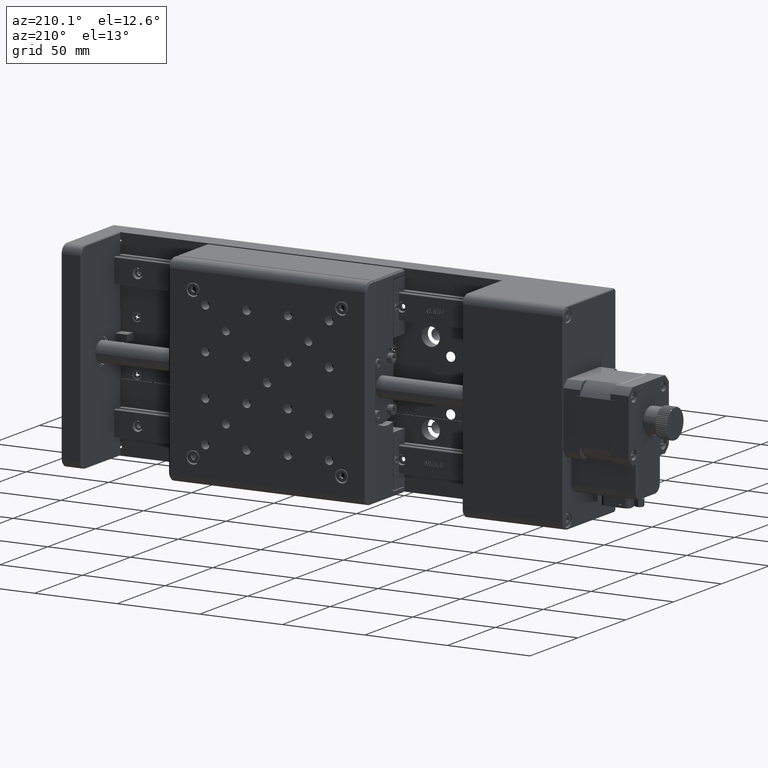
[diagram: clean part render]
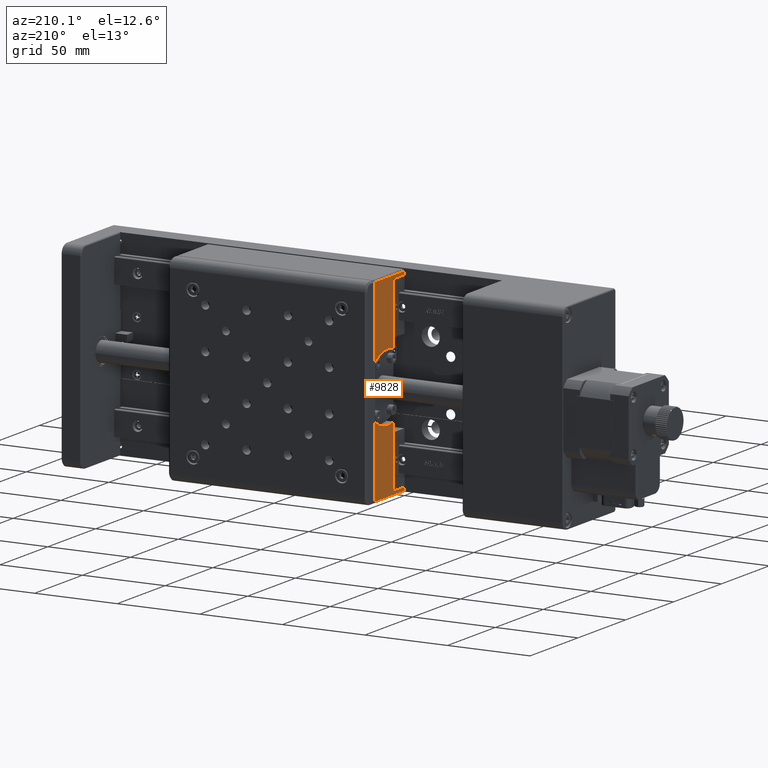
[diagram: same view with one face highlighted and labeled with its STEP entity id]
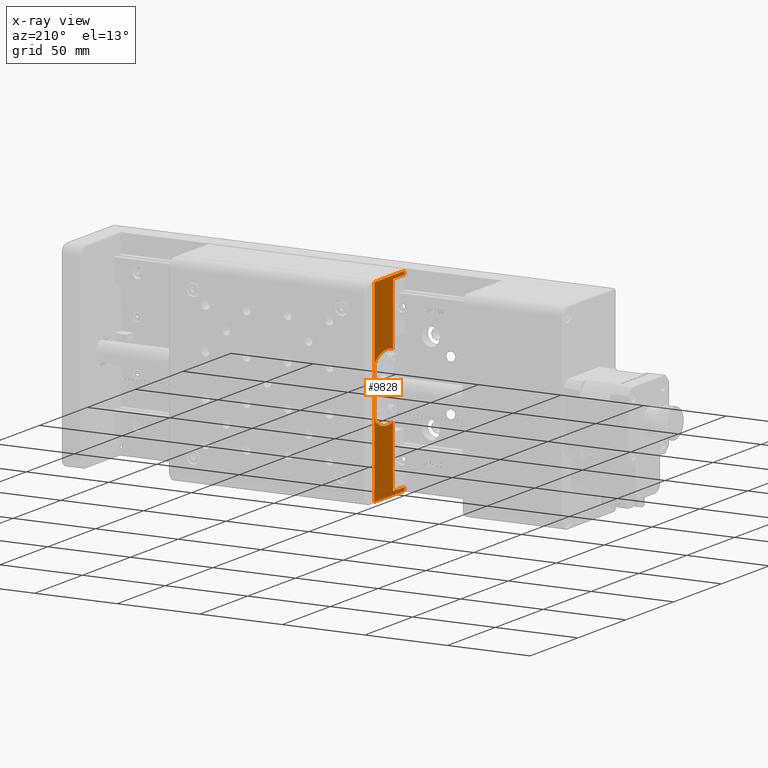
[diagram: x-ray of the same camera — body ghosted, the highlighted face saturated]
A machine part, auxiliary view. The second image highlights one B-rep face of the part: STEP entity #9828.
The next image is the same camera in x-ray: the body ghosted, the highlighted face saturated — about 0% of this face is hidden behind the body in this view.
In plain terms, the highlighted planar face has unit normal (1, 0, -0).
Its self-contained STEP definition (entity closure, byte-faithful):
#544 = CIRCLE ( 'NONE', #11584, 2.000000000000001800 ) ;
#839 = VECTOR ( 'NONE', #41284, 1000.000000000000000 ) ;
#1043 = VERTEX_POINT ( 'NONE', #32382 ) ;
#1426 = CARTESIAN_POINT ( 'NONE',  ( -109.4059890978151500, 27.99999999999939200, 59.38117301715108500 ) ) ;
#1535 = DIRECTION ( 'NONE',  ( 1.000000000000000000, 1.083697977758735300E-016, -4.404331600091459700E-016 ) ) ;
#1704 = ORIENTED_EDGE ( 'NONE', *, *, #11123, .T. ) ;
#2656 = CIRCLE ( 'NONE', #10119, 20.50000000000000400 ) ;
#2743 = FACE_OUTER_BOUND ( 'NONE', #6947, .T. ) ;
#2791 = VECTOR ( 'NONE', #27215, 1000.000000000000000 ) ;
#2949 = DIRECTION ( 'NONE',  ( -4.404331555713330700E-016, 1.359326499390876400E-014, -1.000000000000000000 ) ) ;
#3171 = VERTEX_POINT ( 'NONE', #31889 ) ;
#3529 = ORIENTED_EDGE ( 'NONE', *, *, #4866, .T. ) ;
#4393 = EDGE_CURVE ( 'NONE', #12078, #9184, #41589, .T. ) ;
#4654 = CARTESIAN_POINT ( 'NONE',  ( -109.4059890978151900, 16.00000000000045500, -19.22112276676175200 ) ) ;
#4866 = EDGE_CURVE ( 'NONE', #39658, #3171, #32449, .T. ) ;
#6522 = VERTEX_POINT ( 'NONE', #37674 ) ;
#6675 = LINE ( 'NONE', #33887, #18608 ) ;
#6947 = EDGE_LOOP ( 'NONE', ( #22175, #48167, #33354, #46648, #13366, #17305, #33532, #3529, #41598, #47774, #34105, #1704, #45468, #34070 ) ) ;
#7740 = VERTEX_POINT ( 'NONE', #35580 ) ;
#7944 = CARTESIAN_POINT ( 'NONE',  ( -109.4059890978151400, 15.99999999999883800, 99.77887723323821900 ) ) ;
#8069 = DIRECTION ( 'NONE',  ( -4.404331555713330700E-016, 1.359326499390876400E-014, -1.000000000000000000 ) ) ;
#8899 = CARTESIAN_POINT ( 'NONE',  ( -109.4059890978151800, 44.74999999999985800, 24.72273230832509600 ) ) ;
#9184 = VERTEX_POINT ( 'NONE', #42096 ) ;
#9228 = CARTESIAN_POINT ( 'NONE',  ( -109.4059890978151400, 47.99999999999884200, 99.77887723323866000 ) ) ;
#9761 = DIRECTION ( 'NONE',  ( -4.404331555713330700E-016, 1.359326499390876400E-014, -1.000000000000000000 ) ) ;
#9828 = ADVANCED_FACE ( 'NONE', ( #2743 ), #17194, .F. ) ;
#10025 = AXIS2_PLACEMENT_3D ( 'NONE', #48391, #40757, #10123 ) ;
#10119 = AXIS2_PLACEMENT_3D ( 'NONE', #28421, #35928, #24432 ) ;
#10123 = DIRECTION ( 'NONE',  ( 0.0000000000000000000, -1.000000000000000000, -1.387778780781444400E-014 ) ) ;
#11123 = EDGE_CURVE ( 'NONE', #38187, #15240, #21800, .T. ) ;
#11584 = AXIS2_PLACEMENT_3D ( 'NONE', #8899, #1535, #24354 ) ;
#11607 = VERTEX_POINT ( 'NONE', #40296 ) ;
#12078 = VERTEX_POINT ( 'NONE', #29220 ) ;
#12592 = EDGE_CURVE ( 'NONE', #7740, #1043, #544, .T. ) ;
#13366 = ORIENTED_EDGE ( 'NONE', *, *, #4393, .T. ) ;
#13393 = LINE ( 'NONE', #43751, #22307 ) ;
#13518 = DIRECTION ( 'NONE',  ( -1.000000000000000000, -1.083697977758735300E-016, 4.404331600091459700E-016 ) ) ;
#14024 = EDGE_CURVE ( 'NONE', #6522, #41696, #47471, .T. ) ;
#15157 = EDGE_CURVE ( 'NONE', #11607, #35565, #49154, .T. ) ;
#15240 = VERTEX_POINT ( 'NONE', #4654 ) ;
#15752 = EDGE_CURVE ( 'NONE', #7740, #26674, #2656, .T. ) ;
#15759 = DIRECTION ( 'NONE',  ( -4.404331555713330700E-016, 1.359326499390876400E-014, -1.000000000000000000 ) ) ;
#17194 = PLANE ( 'NONE',  #33535 ) ;
#17305 = ORIENTED_EDGE ( 'NONE', *, *, #30807, .F. ) ;
#17775 = VECTOR ( 'NONE', #46209, 1000.000000000000000 ) ;
#18534 = EDGE_CURVE ( 'NONE', #41696, #38187, #44451, .T. ) ;
#18608 = VECTOR ( 'NONE', #22867, 1000.000000000000000 ) ;
#20076 = DIRECTION ( 'NONE',  ( 1.083698070157765600E-016, -1.000000000000000000, -1.359326499390876400E-014 ) ) ;
#20677 = CARTESIAN_POINT ( 'NONE',  ( -109.4059890978151700, 33.99999999999965900, 39.77887723323850400 ) ) ;
#21800 = LINE ( 'NONE', #27745, #27122 ) ;
#22175 = ORIENTED_EDGE ( 'NONE', *, *, #29807, .F. ) ;
#22307 = VECTOR ( 'NONE', #9761, 1000.000000000000000 ) ;
#22867 = DIRECTION ( 'NONE',  ( 4.404331555713330700E-016, -1.359326499390876400E-014, 1.000000000000000000 ) ) ;
#24354 = DIRECTION ( 'NONE',  ( 0.0000000000000000000, -1.000000000000000000, -1.387778780781444400E-014 ) ) ;
#24364 = DIRECTION ( 'NONE',  ( 1.083698070157765600E-016, -1.000000000000000000, -1.359326499390876400E-014 ) ) ;
#24432 = DIRECTION ( 'NONE',  ( 0.0000000000000000000, 1.000000000000000000, 1.353930517835556500E-014 ) ) ;
#25076 = CARTESIAN_POINT ( 'NONE',  ( -109.4059890978151400, 47.49999999999884900, 98.77887723323866000 ) ) ;
#25506 = LINE ( 'NONE', #7944, #17775 ) ;
#25571 = AXIS2_PLACEMENT_3D ( 'NONE', #20677, #13518, #43685 ) ;
#25769 = CARTESIAN_POINT ( 'NONE',  ( -109.4059890978151900, 28.00000000000042600, -17.22112276676159600 ) ) ;
#25955 = EDGE_CURVE ( 'NONE', #15240, #35565, #6675, .T. ) ;
#26674 = VERTEX_POINT ( 'NONE', #39150 ) ;
#27021 = CARTESIAN_POINT ( 'NONE',  ( -109.4059890978151400, 47.49999999999884200, 99.77887723323866000 ) ) ;
#27122 = VECTOR ( 'NONE', #20076, 1000.000000000000000 ) ;
#27215 = DIRECTION ( 'NONE',  ( -1.083698070157765600E-016, 1.000000000000000000, 1.359326499390876400E-014 ) ) ;
#27745 = CARTESIAN_POINT ( 'NONE',  ( -109.4059890978151900, 48.00000000000046200, -19.22112276676131500 ) ) ;
#28421 = CARTESIAN_POINT ( 'NONE',  ( -109.4059890978151700, 33.99999999999965900, 39.77887723323850400 ) ) ;
#29220 = CARTESIAN_POINT ( 'NONE',  ( -109.4059890978151500, 46.74999999999944600, 54.83502215815222800 ) ) ;
#29807 = EDGE_CURVE ( 'NONE', #26674, #11607, #35625, .T. ) ;
#30741 = CARTESIAN_POINT ( 'NONE',  ( -109.4059890978151400, 27.99999999999888100, 96.77887723323839000 ) ) ;
#30807 = EDGE_CURVE ( 'NONE', #36686, #9184, #31939, .T. ) ;
#31889 = CARTESIAN_POINT ( 'NONE',  ( -109.4059890978151400, 15.99999999999887900, 96.77887723323821900 ) ) ;
#31939 = CIRCLE ( 'NONE', #25571, 20.50000000000000400 ) ;
#32382 = CARTESIAN_POINT ( 'NONE',  ( -109.4059890978151800, 46.74999999999985100, 24.72273230832512400 ) ) ;
#32449 = LINE ( 'NONE', #33631, #839 ) ;
#33354 = ORIENTED_EDGE ( 'NONE', *, *, #12592, .T. ) ;
#33532 = ORIENTED_EDGE ( 'NONE', *, *, #43805, .F. ) ;
#33535 = AXIS2_PLACEMENT_3D ( 'NONE', #9228, #36180, #24364 ) ;
#33631 = CARTESIAN_POINT ( 'NONE',  ( -109.4059890978151400, 27.99999999999888100, 96.77887723323839000 ) ) ;
#33887 = CARTESIAN_POINT ( 'NONE',  ( -109.4059890978151400, 15.99999999999883800, 99.77887723323821900 ) ) ;
#34070 = ORIENTED_EDGE ( 'NONE', *, *, #15157, .F. ) ;
#34105 = ORIENTED_EDGE ( 'NONE', *, *, #18534, .T. ) ;
#35265 = EDGE_CURVE ( 'NONE', #3171, #6522, #25506, .T. ) ;
#35565 = VERTEX_POINT ( 'NONE', #45157 ) ;
#35580 = CARTESIAN_POINT ( 'NONE',  ( -109.4059890978151800, 45.91216216216204100, 23.09504096509121500 ) ) ;
#35603 = CARTESIAN_POINT ( 'NONE',  ( -109.4059890978151900, 47.50000000000046200, -19.22112276676132200 ) ) ;
#35625 = LINE ( 'NONE', #25769, #43375 ) ;
#35928 = DIRECTION ( 'NONE',  ( -1.000000000000000000, -1.083697977758735300E-016, 4.404331600091459700E-016 ) ) ;
#36180 = DIRECTION ( 'NONE',  ( 1.000000000000000000, 1.083698070157825500E-016, -4.404331600091459700E-016 ) ) ;
#36686 = VERTEX_POINT ( 'NONE', #1426 ) ;
#37674 = CARTESIAN_POINT ( 'NONE',  ( -109.4059890978151400, 15.99999999999885200, 98.77887723323824800 ) ) ;
#38163 = VECTOR ( 'NONE', #15759, 1000.000000000000000 ) ;
#38187 = VERTEX_POINT ( 'NONE', #35603 ) ;
#38345 = CARTESIAN_POINT ( 'NONE',  ( -109.4059890978151900, 28.00000000000042600, -17.22112276676159600 ) ) ;
#38762 = CARTESIAN_POINT ( 'NONE',  ( -109.4059890978151400, 47.99999999999884900, 98.77887723323867400 ) ) ;
#39070 = VECTOR ( 'NONE', #41708, 1000.000000000000000 ) ;
#39150 = CARTESIAN_POINT ( 'NONE',  ( -109.4059890978151800, 27.99999999999992200, 20.17658144932576300 ) ) ;
#39658 = VERTEX_POINT ( 'NONE', #43105 ) ;
#40296 = CARTESIAN_POINT ( 'NONE',  ( -109.4059890978151900, 28.00000000000042600, -17.22112276676159600 ) ) ;
#40757 = DIRECTION ( 'NONE',  ( 1.000000000000000000, 1.083697977758735300E-016, -4.404331600091459700E-016 ) ) ;
#41284 = DIRECTION ( 'NONE',  ( 1.083698070157765600E-016, -1.000000000000000000, -1.359326499390876400E-014 ) ) ;
#41589 = CIRCLE ( 'NONE', #10025, 2.000000000000001800 ) ;
#41598 = ORIENTED_EDGE ( 'NONE', *, *, #35265, .T. ) ;
#41696 = VERTEX_POINT ( 'NONE', #25076 ) ;
#41708 = DIRECTION ( 'NONE',  ( 1.083698070157765600E-016, -1.000000000000000000, -1.359326499390876400E-014 ) ) ;
#42096 = CARTESIAN_POINT ( 'NONE',  ( -109.4059890978151500, 45.91216216216157900, 56.46271350138611200 ) ) ;
#43105 = CARTESIAN_POINT ( 'NONE',  ( -109.4059890978151400, 27.99999999999888100, 96.77887723323839000 ) ) ;
#43375 = VECTOR ( 'NONE', #2949, 1000.000000000000000 ) ;
#43685 = DIRECTION ( 'NONE',  ( 0.0000000000000000000, 1.000000000000000000, 1.353930517835556500E-014 ) ) ;
#43751 = CARTESIAN_POINT ( 'NONE',  ( -109.4059890978151800, 46.74999999999986500, 23.72622947656002500 ) ) ;
#43805 = EDGE_CURVE ( 'NONE', #39658, #36686, #48238, .T. ) ;
#44451 = LINE ( 'NONE', #27021, #49163 ) ;
#45157 = CARTESIAN_POINT ( 'NONE',  ( -109.4059890978151900, 16.00000000000042600, -17.22112276676176300 ) ) ;
#45468 = ORIENTED_EDGE ( 'NONE', *, *, #25955, .T. ) ;
#46209 = DIRECTION ( 'NONE',  ( 4.404331555713330700E-016, -1.359326499390876400E-014, 1.000000000000000000 ) ) ;
#46648 = ORIENTED_EDGE ( 'NONE', *, *, #48450, .F. ) ;
#47471 = LINE ( 'NONE', #38762, #2791 ) ;
#47774 = ORIENTED_EDGE ( 'NONE', *, *, #14024, .T. ) ;
#48167 = ORIENTED_EDGE ( 'NONE', *, *, #15752, .F. ) ;
#48238 = LINE ( 'NONE', #30741, #38163 ) ;
#48391 = CARTESIAN_POINT ( 'NONE',  ( -109.4059890978151500, 44.74999999999944600, 54.83502215815219900 ) ) ;
#48450 = EDGE_CURVE ( 'NONE', #12078, #1043, #13393, .T. ) ;
#49154 = LINE ( 'NONE', #38345, #39070 ) ;
#49163 = VECTOR ( 'NONE', #8069, 1000.000000000000000 ) ;